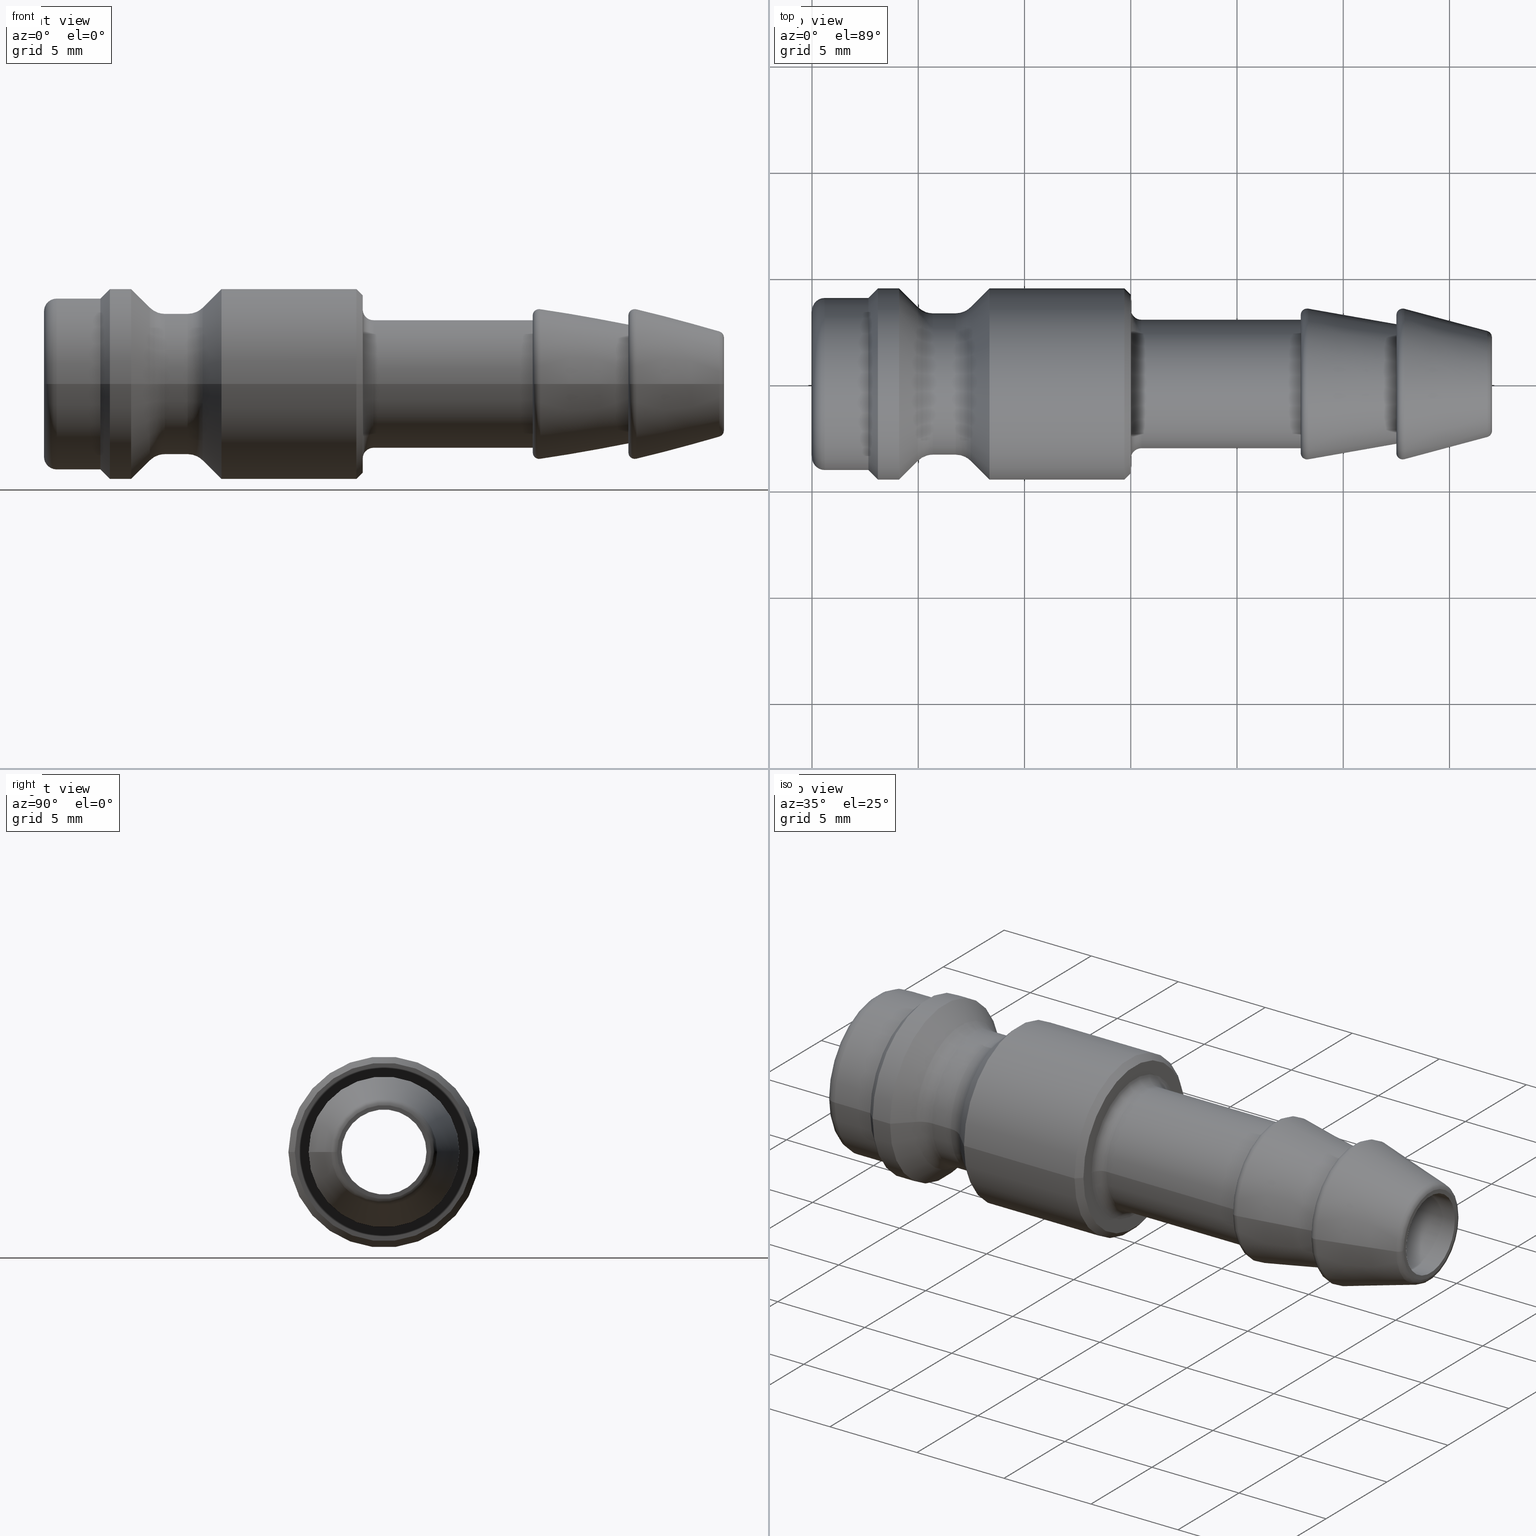
[diagram: canonical four-view strip — front | top / right | iso, engineering-drawing reading convention]
A machine part, canonical four-view strip (front | top / right | iso — engineering-drawing reading convention). The complete STEP part file that produces these views, byte-faithful:
ISO-10303-21;
HEADER;
/****************************************************************
 * Generated by software with PDElib inside                    *
 * PDElib Version v51a, created Wed 11/30/2011                  *
 * ITI Transcendata (http://www.transcendata.com/)              *
 ****************************************************************/
FILE_DESCRIPTION((''),'2;1');
FILE_NAME('J:\\3D Zeichnungen_step\\Serie 21\\21sftf06mxx.stp','2013-09-19T13:40:46',('IA176480'),(''),'Autodesk Inventor 2013','Autodesk Inventor 2013','');
FILE_SCHEMA(('AUTOMOTIVE_DESIGN { 1 0 10303 214 1 1 1 1 }'));
ENDSEC;
DATA;
#5=APPLICATION_CONTEXT('automotive design');
#6=APPLICATION_PROTOCOL_DEFINITION('International Standard','automotive_design',2001,#5);
#7=PRODUCT_CONTEXT('',#5,'mechanical');
#8=PRODUCT('D107819','D107819',$,(#7));
#9=PRODUCT_RELATED_PRODUCT_CATEGORY('part',$,(#8));
#10=PRODUCT_DEFINITION_FORMATION('',$,#8);
#11=PRODUCT_DEFINITION_CONTEXT('part definition',#5,'design');
#12=PRODUCT_DEFINITION('',$,#10,#11);
#18=(NAMED_UNIT(*)PLANE_ANGLE_UNIT()SI_UNIT($,.RADIAN.));
#19=DIMENSIONAL_EXPONENTS(0.0,0.0,0.0,0.0,0.0,0.0,0.0);
#20=PLANE_ANGLE_MEASURE_WITH_UNIT(PLANE_ANGLE_MEASURE(0.0174532925),#18);
#24=(CONVERSION_BASED_UNIT('DEGREE',#20)NAMED_UNIT(#19)PLANE_ANGLE_UNIT());
#28=(NAMED_UNIT(*)SI_UNIT($,.STERADIAN.)SOLID_ANGLE_UNIT());
#32=(LENGTH_UNIT()NAMED_UNIT(*)SI_UNIT(.MILLI.,.METRE.));
#34=UNCERTAINTY_MEASURE_WITH_UNIT(LENGTH_MEASURE(0.01),#32,'DISTANCE_ACCURACY_VALUE','');
#36=(GEOMETRIC_REPRESENTATION_CONTEXT(3)GLOBAL_UNCERTAINTY_ASSIGNED_CONTEXT((#34))GLOBAL_UNIT_ASSIGNED_CONTEXT((#24,#28,#32))REPRESENTATION_CONTEXT('None','None'));
#37=AXIS2_PLACEMENT_3D('',#38,#39,#40);
#38=CARTESIAN_POINT('',(0.0,0.0,0.0));
#39=DIRECTION('',(0.0,0.0,1.0));
#40=DIRECTION('',(1.0,0.0,0.0));
#41=SHAPE_REPRESENTATION('',(#37),#36);
#42=PRODUCT_DEFINITION_SHAPE('','',#12);
#43=SHAPE_DEFINITION_REPRESENTATION(#42,#41);
#49=(NAMED_UNIT(*)PLANE_ANGLE_UNIT()SI_UNIT($,.RADIAN.));
#50=DIMENSIONAL_EXPONENTS(0.0,0.0,0.0,0.0,0.0,0.0,0.0);
#51=PLANE_ANGLE_MEASURE_WITH_UNIT(PLANE_ANGLE_MEASURE(0.0174532925),#49);
#55=(CONVERSION_BASED_UNIT('DEGREE',#51)NAMED_UNIT(#50)PLANE_ANGLE_UNIT());
#59=(NAMED_UNIT(*)SI_UNIT($,.STERADIAN.)SOLID_ANGLE_UNIT());
#63=(LENGTH_UNIT()NAMED_UNIT(*)SI_UNIT(.MILLI.,.METRE.));
#65=UNCERTAINTY_MEASURE_WITH_UNIT(LENGTH_MEASURE(0.000001),#63,'DISTANCE_ACCURACY_VALUE','');
#67=(GEOMETRIC_REPRESENTATION_CONTEXT(3)GLOBAL_UNCERTAINTY_ASSIGNED_CONTEXT((#65))GLOBAL_UNIT_ASSIGNED_CONTEXT((#55,#59,#63))REPRESENTATION_CONTEXT('','3D'));
#68=CARTESIAN_POINT('',(25.426047226650041,0.0,0.0));
#69=DIRECTION('',(-1.0,0.0,0.0));
#70=DIRECTION('',(0.0,-1.0,0.0));
#71=AXIS2_PLACEMENT_3D('',#68,#69,#70);
#72=CONICAL_SURFACE('',#71,3.179748495246917,10.000000000000028);
#73=CARTESIAN_POINT('',(23.352094453300079,-3.545442325903664,0.0));
#74=VERTEX_POINT('',#73);
#75=CARTESIAN_POINT('',(23.352094453300079,0.0,0.0));
#76=DIRECTION('',(-1.0,0.0,0.0));
#77=DIRECTION('',(0.0,-1.0,0.0));
#78=AXIS2_PLACEMENT_3D('',#75,#76,#77);
#79=CIRCLE('',#78,3.545442325903664);
#80=EDGE_CURVE('',#74,#74,#79,.T.);
#81=ORIENTED_EDGE('',*,*,#80,.F.);
#82=EDGE_LOOP('',(#81));
#83=FACE_OUTER_BOUND('',#82,.T.);
#84=CARTESIAN_POINT('',(27.5,-2.81405466459017,0.0));
#85=VERTEX_POINT('',#84);
#86=CARTESIAN_POINT('',(27.5,0.0,0.0));
#87=DIRECTION('',(-1.0,0.0,0.0));
#88=DIRECTION('',(0.0,-1.0,0.0));
#89=AXIS2_PLACEMENT_3D('',#86,#87,#88);
#90=CIRCLE('',#89,2.81405466459017);
#91=EDGE_CURVE('',#85,#85,#90,.T.);
#92=ORIENTED_EDGE('',*,*,#91,.T.);
#93=EDGE_LOOP('',(#92));
#94=FACE_BOUND('',#93,.T.);
#95=ADVANCED_FACE('',(#83,#94),#72,.T.);
#96=CARTESIAN_POINT('',(23.300000000000001,0.0,0.0));
#97=DIRECTION('',(-1.0,0.0,0.0));
#98=DIRECTION('',(0.0,0.0,1.0));
#99=AXIS2_PLACEMENT_3D('',#96,#97,#98);
#100=TOROIDAL_SURFACE('',#99,3.25,0.299999999999997);
#101=CARTESIAN_POINT('',(23.000000000000004,-3.25,0.0));
#102=VERTEX_POINT('',#101);
#103=CARTESIAN_POINT('',(23.000000000000004,0.0,0.0));
#104=DIRECTION('',(-1.0,0.0,0.0));
#105=DIRECTION('',(0.0,-1.0,0.0));
#106=AXIS2_PLACEMENT_3D('',#103,#104,#105);
#107=CIRCLE('',#106,3.25);
#108=EDGE_CURVE('',#102,#102,#107,.T.);
#109=ORIENTED_EDGE('',*,*,#108,.F.);
#110=EDGE_LOOP('',(#109));
#111=FACE_OUTER_BOUND('',#110,.T.);
#112=ORIENTED_EDGE('',*,*,#80,.T.);
#113=EDGE_LOOP('',(#112));
#114=FACE_BOUND('',#113,.T.);
#115=ADVANCED_FACE('',(#111,#114),#100,.T.);
#116=CARTESIAN_POINT('',(23.000000000000004,-3.1375,0.0));
#117=DIRECTION('',(-1.0,0.0,0.0));
#118=DIRECTION('',(0.0,0.0,1.0));
#119=AXIS2_PLACEMENT_3D('',#116,#117,#118);
#120=PLANE('',#119);
#121=ORIENTED_EDGE('',*,*,#108,.T.);
#122=EDGE_LOOP('',(#121));
#123=FACE_OUTER_BOUND('',#122,.T.);
#124=CARTESIAN_POINT('',(23.000000000000004,-3.025,0.0));
#125=VERTEX_POINT('',#124);
#126=CARTESIAN_POINT('',(23.000000000000004,0.0,0.0));
#127=DIRECTION('',(-1.0,0.0,0.0));
#128=DIRECTION('',(0.0,-1.0,0.0));
#129=AXIS2_PLACEMENT_3D('',#126,#127,#128);
#130=CIRCLE('',#129,3.025);
#131=EDGE_CURVE('',#125,#125,#130,.T.);
#132=ORIENTED_EDGE('',*,*,#131,.F.);
#133=EDGE_LOOP('',(#132));
#134=FACE_BOUND('',#133,.T.);
#135=ADVANCED_FACE('',(#123,#134),#120,.T.);
#136=CARTESIAN_POINT('',(19.250000000000004,0.0,0.0));
#137=DIRECTION('',(-1.0,0.0,0.0));
#138=DIRECTION('',(0.0,-1.0,0.0));
#139=AXIS2_PLACEMENT_3D('',#136,#137,#138);
#140=CYLINDRICAL_SURFACE('',#139,3.025);
#141=CARTESIAN_POINT('',(15.5,-3.025,0.0));
#142=VERTEX_POINT('',#141);
#143=CARTESIAN_POINT('',(15.5,0.0,0.0));
#144=DIRECTION('',(-1.0,0.0,0.0));
#145=DIRECTION('',(0.0,-1.0,0.0));
#146=AXIS2_PLACEMENT_3D('',#143,#144,#145);
#147=CIRCLE('',#146,3.025);
#148=EDGE_CURVE('',#142,#142,#147,.T.);
#149=ORIENTED_EDGE('',*,*,#148,.F.);
#150=EDGE_LOOP('',(#149));
#151=FACE_OUTER_BOUND('',#150,.T.);
#152=ORIENTED_EDGE('',*,*,#131,.T.);
#153=EDGE_LOOP('',(#152));
#154=FACE_BOUND('',#153,.T.);
#155=ADVANCED_FACE('',(#151,#154),#140,.T.);
#156=CARTESIAN_POINT('',(15.500000000000004,0.0,0.0));
#157=DIRECTION('',(-1.0,0.0,0.0));
#158=DIRECTION('',(0.0,0.0,1.0));
#159=AXIS2_PLACEMENT_3D('',#156,#157,#158);
#160=TOROIDAL_SURFACE('',#159,3.525000000000002,0.500000000000002);
#161=CARTESIAN_POINT('',(15.0,-3.525,0.0));
#162=VERTEX_POINT('',#161);
#163=CARTESIAN_POINT('',(15.0,0.0,0.0));
#164=DIRECTION('',(-1.0,0.0,0.0));
#165=DIRECTION('',(0.0,-1.0,0.0));
#166=AXIS2_PLACEMENT_3D('',#163,#164,#165);
#167=CIRCLE('',#166,3.525);
#168=EDGE_CURVE('',#162,#162,#167,.T.);
#169=ORIENTED_EDGE('',*,*,#168,.F.);
#170=EDGE_LOOP('',(#169));
#171=FACE_OUTER_BOUND('',#170,.T.);
#172=ORIENTED_EDGE('',*,*,#148,.T.);
#173=EDGE_LOOP('',(#172));
#174=FACE_BOUND('',#173,.T.);
#175=ADVANCED_FACE('',(#171,#174),#160,.F.);
#176=CARTESIAN_POINT('',(15.0,-3.8625,0.0));
#177=DIRECTION('',(1.0,0.0,0.0));
#178=DIRECTION('',(0.0,0.0,-1.0));
#179=AXIS2_PLACEMENT_3D('',#176,#177,#178);
#180=PLANE('',#179);
#181=CARTESIAN_POINT('',(15.0,-4.199999999999999,0.0));
#182=VERTEX_POINT('',#181);
#183=CARTESIAN_POINT('',(15.0,0.0,0.0));
#184=DIRECTION('',(-1.0,0.0,0.0));
#185=DIRECTION('',(0.0,-1.0,0.0));
#186=AXIS2_PLACEMENT_3D('',#183,#184,#185);
#187=CIRCLE('',#186,4.199999999999999);
#188=EDGE_CURVE('',#182,#182,#187,.T.);
#189=ORIENTED_EDGE('',*,*,#188,.F.);
#190=EDGE_LOOP('',(#189));
#191=FACE_OUTER_BOUND('',#190,.T.);
#192=ORIENTED_EDGE('',*,*,#168,.T.);
#193=EDGE_LOOP('',(#192));
#194=FACE_BOUND('',#193,.T.);
#195=ADVANCED_FACE('',(#191,#194),#180,.T.);
#196=CARTESIAN_POINT('',(14.850000000000001,0.0,0.0));
#197=DIRECTION('',(-1.0,0.0,0.0));
#198=DIRECTION('',(0.0,-1.0,0.0));
#199=AXIS2_PLACEMENT_3D('',#196,#197,#198);
#200=CONICAL_SURFACE('',#199,4.35,45.000000000000206);
#201=CARTESIAN_POINT('',(14.700000000000003,-4.5,0.0));
#202=VERTEX_POINT('',#201);
#203=CARTESIAN_POINT('',(14.700000000000003,0.0,0.0));
#204=DIRECTION('',(-1.0,0.0,0.0));
#205=DIRECTION('',(0.0,-1.0,0.0));
#206=AXIS2_PLACEMENT_3D('',#203,#204,#205);
#207=CIRCLE('',#206,4.5);
#208=EDGE_CURVE('',#202,#202,#207,.T.);
#209=ORIENTED_EDGE('',*,*,#208,.F.);
#210=EDGE_LOOP('',(#209));
#211=FACE_OUTER_BOUND('',#210,.T.);
#212=ORIENTED_EDGE('',*,*,#188,.T.);
#213=EDGE_LOOP('',(#212));
#214=FACE_BOUND('',#213,.T.);
#215=ADVANCED_FACE('',(#211,#214),#200,.T.);
#216=CARTESIAN_POINT('',(11.525000000000002,0.0,0.0));
#217=DIRECTION('',(-1.0,0.0,0.0));
#218=DIRECTION('',(0.0,-1.0,0.0));
#219=AXIS2_PLACEMENT_3D('',#216,#217,#218);
#220=CYLINDRICAL_SURFACE('',#219,4.5);
#221=CARTESIAN_POINT('',(8.350000000000001,-4.500000000000001,0.0));
#222=VERTEX_POINT('',#221);
#223=CARTESIAN_POINT('',(8.350000000000001,0.0,0.0));
#224=DIRECTION('',(-1.0,0.0,0.0));
#225=DIRECTION('',(0.0,-1.0,0.0));
#226=AXIS2_PLACEMENT_3D('',#223,#224,#225);
#227=CIRCLE('',#226,4.500000000000001);
#228=EDGE_CURVE('',#222,#222,#227,.T.);
#229=ORIENTED_EDGE('',*,*,#228,.F.);
#230=EDGE_LOOP('',(#229));
#231=FACE_OUTER_BOUND('',#230,.T.);
#232=ORIENTED_EDGE('',*,*,#208,.T.);
#233=EDGE_LOOP('',(#232));
#234=FACE_BOUND('',#233,.T.);
#235=ADVANCED_FACE('',(#231,#234),#220,.T.);
#236=CARTESIAN_POINT('',(7.908946609406726,0.0,0.0));
#237=DIRECTION('',(1.0,0.0,0.0));
#238=DIRECTION('',(0.0,-1.0,0.0));
#239=AXIS2_PLACEMENT_3D('',#236,#237,#238);
#240=CONICAL_SURFACE('',#239,4.058946609406727,44.999999999999879);
#241=CARTESIAN_POINT('',(7.467893218813448,-3.617893218813451,0.0));
#242=VERTEX_POINT('',#241);
#243=CARTESIAN_POINT('',(7.467893218813448,0.0,0.0));
#244=DIRECTION('',(-1.0,0.0,0.0));
#245=DIRECTION('',(0.0,-1.0,0.0));
#246=AXIS2_PLACEMENT_3D('',#243,#244,#245);
#247=CIRCLE('',#246,3.617893218813451);
#248=EDGE_CURVE('',#242,#242,#247,.T.);
#249=ORIENTED_EDGE('',*,*,#248,.F.);
#250=EDGE_LOOP('',(#249));
#251=FACE_OUTER_BOUND('',#250,.T.);
#252=ORIENTED_EDGE('',*,*,#228,.T.);
#253=EDGE_LOOP('',(#252));
#254=FACE_BOUND('',#253,.T.);
#255=ADVANCED_FACE('',(#251,#254),#240,.T.);
#256=CARTESIAN_POINT('',(6.760786437626902,0.0,0.0));
#257=DIRECTION('',(-1.0,0.0,0.0));
#258=DIRECTION('',(0.0,0.0,1.0));
#259=AXIS2_PLACEMENT_3D('',#256,#257,#258);
#260=TOROIDAL_SURFACE('',#259,4.325000000000003,1.000000000000002);
#261=CARTESIAN_POINT('',(6.760786437626901,-3.325000000000001,0.0));
#262=VERTEX_POINT('',#261);
#263=CARTESIAN_POINT('',(6.760786437626902,0.0,0.0));
#264=DIRECTION('',(-1.0,0.0,0.0));
#265=DIRECTION('',(0.0,-1.0,0.0));
#266=AXIS2_PLACEMENT_3D('',#263,#264,#265);
#267=CIRCLE('',#266,3.325000000000001);
#268=EDGE_CURVE('',#262,#262,#267,.T.);
#269=ORIENTED_EDGE('',*,*,#268,.F.);
#270=EDGE_LOOP('',(#269));
#271=FACE_OUTER_BOUND('',#270,.T.);
#272=ORIENTED_EDGE('',*,*,#248,.T.);
#273=EDGE_LOOP('',(#272));
#274=FACE_BOUND('',#273,.T.);
#275=ADVANCED_FACE('',(#271,#274),#260,.F.);
#276=CARTESIAN_POINT('',(6.224999999999996,0.0,0.0));
#277=DIRECTION('',(-1.0,0.0,0.0));
#278=DIRECTION('',(0.0,-1.0,0.0));
#279=AXIS2_PLACEMENT_3D('',#276,#277,#278);
#280=CYLINDRICAL_SURFACE('',#279,3.325000000000001);
#281=CARTESIAN_POINT('',(5.689213562373094,-3.325000000000001,0.0));
#282=VERTEX_POINT('',#281);
#283=CARTESIAN_POINT('',(5.689213562373094,0.0,0.0));
#284=DIRECTION('',(-1.0,0.0,0.0));
#285=DIRECTION('',(0.0,-1.0,0.0));
#286=AXIS2_PLACEMENT_3D('',#283,#284,#285);
#287=CIRCLE('',#286,3.325000000000001);
#288=EDGE_CURVE('',#282,#282,#287,.T.);
#289=ORIENTED_EDGE('',*,*,#288,.F.);
#290=EDGE_LOOP('',(#289));
#291=FACE_OUTER_BOUND('',#290,.T.);
#292=ORIENTED_EDGE('',*,*,#268,.T.);
#293=EDGE_LOOP('',(#292));
#294=FACE_BOUND('',#293,.T.);
#295=ADVANCED_FACE('',(#291,#294),#280,.T.);
#296=CARTESIAN_POINT('',(5.689213562373091,0.0,0.0));
#297=DIRECTION('',(-1.0,0.0,0.0));
#298=DIRECTION('',(0.0,0.0,1.0));
#299=AXIS2_PLACEMENT_3D('',#296,#297,#298);
#300=TOROIDAL_SURFACE('',#299,4.324999999999996,0.999999999999995);
#301=CARTESIAN_POINT('',(4.982106781186545,-3.617893218813455,0.0));
#302=VERTEX_POINT('',#301);
#303=CARTESIAN_POINT('',(4.982106781186544,0.0,0.0));
#304=DIRECTION('',(-1.0,0.0,0.0));
#305=DIRECTION('',(0.0,-1.0,0.0));
#306=AXIS2_PLACEMENT_3D('',#303,#304,#305);
#307=CIRCLE('',#306,3.617893218813455);
#308=EDGE_CURVE('',#302,#302,#307,.T.);
#309=ORIENTED_EDGE('',*,*,#308,.F.);
#310=EDGE_LOOP('',(#309));
#311=FACE_OUTER_BOUND('',#310,.T.);
#312=ORIENTED_EDGE('',*,*,#288,.T.);
#313=EDGE_LOOP('',(#312));
#314=FACE_BOUND('',#313,.T.);
#315=ADVANCED_FACE('',(#311,#314),#300,.F.);
#316=CARTESIAN_POINT('',(4.541053390593275,0.0,0.0));
#317=DIRECTION('',(-1.0,0.0,0.0));
#318=DIRECTION('',(0.0,-1.0,0.0));
#319=AXIS2_PLACEMENT_3D('',#316,#317,#318);
#320=CONICAL_SURFACE('',#319,4.058946609406728,45.000000000000057);
#321=CARTESIAN_POINT('',(4.100000000000001,-4.5,0.0));
#322=VERTEX_POINT('',#321);
#323=CARTESIAN_POINT('',(4.100000000000001,0.0,0.0));
#324=DIRECTION('',(-1.0,0.0,0.0));
#325=DIRECTION('',(0.0,-1.0,0.0));
#326=AXIS2_PLACEMENT_3D('',#323,#324,#325);
#327=CIRCLE('',#326,4.5);
#328=EDGE_CURVE('',#322,#322,#327,.T.);
#329=ORIENTED_EDGE('',*,*,#328,.F.);
#330=EDGE_LOOP('',(#329));
#331=FACE_OUTER_BOUND('',#330,.T.);
#332=ORIENTED_EDGE('',*,*,#308,.T.);
#333=EDGE_LOOP('',(#332));
#334=FACE_BOUND('',#333,.T.);
#335=ADVANCED_FACE('',(#331,#334),#320,.T.);
#336=CARTESIAN_POINT('',(3.600000000000003,0.0,0.0));
#337=DIRECTION('',(-1.0,0.0,0.0));
#338=DIRECTION('',(0.0,-1.0,0.0));
#339=AXIS2_PLACEMENT_3D('',#336,#337,#338);
#340=CYLINDRICAL_SURFACE('',#339,4.5);
#341=CARTESIAN_POINT('',(3.100000000000003,-4.5,0.0));
#342=VERTEX_POINT('',#341);
#343=CARTESIAN_POINT('',(3.100000000000005,0.0,0.0));
#344=DIRECTION('',(-1.0,0.0,0.0));
#345=DIRECTION('',(0.0,-1.0,0.0));
#346=AXIS2_PLACEMENT_3D('',#343,#344,#345);
#347=CIRCLE('',#346,4.5);
#348=EDGE_CURVE('',#342,#342,#347,.T.);
#349=ORIENTED_EDGE('',*,*,#348,.F.);
#350=EDGE_LOOP('',(#349));
#351=FACE_OUTER_BOUND('',#350,.T.);
#352=ORIENTED_EDGE('',*,*,#328,.T.);
#353=EDGE_LOOP('',(#352));
#354=FACE_BOUND('',#353,.T.);
#355=ADVANCED_FACE('',(#351,#354),#340,.T.);
#356=CARTESIAN_POINT('',(2.875000000000001,0.0,0.0));
#357=DIRECTION('',(1.0,0.0,0.0));
#358=DIRECTION('',(0.0,-1.0,0.0));
#359=AXIS2_PLACEMENT_3D('',#356,#357,#358);
#360=CONICAL_SURFACE('',#359,4.275,44.999999999999901);
#361=CARTESIAN_POINT('',(2.650000000000001,-4.050000000000001,0.0));
#362=VERTEX_POINT('',#361);
#363=CARTESIAN_POINT('',(2.650000000000001,0.0,0.0));
#364=DIRECTION('',(-1.0,0.0,0.0));
#365=DIRECTION('',(0.0,-1.0,0.0));
#366=AXIS2_PLACEMENT_3D('',#363,#364,#365);
#367=CIRCLE('',#366,4.050000000000001);
#368=EDGE_CURVE('',#362,#362,#367,.T.);
#369=ORIENTED_EDGE('',*,*,#368,.F.);
#370=EDGE_LOOP('',(#369));
#371=FACE_OUTER_BOUND('',#370,.T.);
#372=ORIENTED_EDGE('',*,*,#348,.T.);
#373=EDGE_LOOP('',(#372));
#374=FACE_BOUND('',#373,.T.);
#375=ADVANCED_FACE('',(#371,#374),#360,.T.);
#376=CARTESIAN_POINT('',(1.625000000000001,0.0,0.0));
#377=DIRECTION('',(-1.0,0.0,0.0));
#378=DIRECTION('',(0.0,-1.0,0.0));
#379=AXIS2_PLACEMENT_3D('',#376,#377,#378);
#380=CYLINDRICAL_SURFACE('',#379,4.050000000000001);
#381=CARTESIAN_POINT('',(0.600000000000001,-4.050000000000001,0.0));
#382=VERTEX_POINT('',#381);
#383=CARTESIAN_POINT('',(0.600000000000001,0.0,0.0));
#384=DIRECTION('',(-1.0,0.0,0.0));
#385=DIRECTION('',(0.0,-1.0,0.0));
#386=AXIS2_PLACEMENT_3D('',#383,#384,#385);
#387=CIRCLE('',#386,4.050000000000001);
#388=EDGE_CURVE('',#382,#382,#387,.T.);
#389=ORIENTED_EDGE('',*,*,#388,.F.);
#390=EDGE_LOOP('',(#389));
#391=FACE_OUTER_BOUND('',#390,.T.);
#392=ORIENTED_EDGE('',*,*,#368,.T.);
#393=EDGE_LOOP('',(#392));
#394=FACE_BOUND('',#393,.T.);
#395=ADVANCED_FACE('',(#391,#394),#380,.T.);
#396=CARTESIAN_POINT('',(0.600000000000002,0.0,0.0));
#397=DIRECTION('',(-1.0,0.0,0.0));
#398=DIRECTION('',(0.0,0.0,1.0));
#399=AXIS2_PLACEMENT_3D('',#396,#397,#398);
#400=TOROIDAL_SURFACE('',#399,3.45,0.600000000000001);
#401=CARTESIAN_POINT('',(1.249001E-015,-3.45,0.0));
#402=VERTEX_POINT('',#401);
#403=CARTESIAN_POINT('',(0.0,0.0,0.0));
#404=DIRECTION('',(-1.0,0.0,0.0));
#405=DIRECTION('',(0.0,-1.0,0.0));
#406=AXIS2_PLACEMENT_3D('',#403,#404,#405);
#407=CIRCLE('',#406,3.45);
#408=EDGE_CURVE('',#402,#402,#407,.T.);
#409=ORIENTED_EDGE('',*,*,#408,.F.);
#410=EDGE_LOOP('',(#409));
#411=FACE_OUTER_BOUND('',#410,.T.);
#412=ORIENTED_EDGE('',*,*,#388,.T.);
#413=EDGE_LOOP('',(#412));
#414=FACE_BOUND('',#413,.T.);
#415=ADVANCED_FACE('',(#411,#414),#400,.T.);
#416=CARTESIAN_POINT('',(1.734723E-015,-2.725000000000002,0.0));
#417=DIRECTION('',(-1.0,0.0,0.0));
#418=DIRECTION('',(0.0,0.0,1.0));
#419=AXIS2_PLACEMENT_3D('',#416,#417,#418);
#420=PLANE('',#419);
#421=ORIENTED_EDGE('',*,*,#408,.T.);
#422=EDGE_LOOP('',(#421));
#423=FACE_OUTER_BOUND('',#422,.T.);
#424=CARTESIAN_POINT('',(2.220446E-015,-2.000000000000004,0.0));
#425=VERTEX_POINT('',#424);
#426=CARTESIAN_POINT('',(4.440892E-015,0.0,0.0));
#427=DIRECTION('',(-1.0,0.0,0.0));
#428=DIRECTION('',(0.0,-1.0,0.0));
#429=AXIS2_PLACEMENT_3D('',#426,#427,#428);
#430=CIRCLE('',#429,2.000000000000004);
#431=EDGE_CURVE('',#425,#425,#430,.T.);
#432=ORIENTED_EDGE('',*,*,#431,.F.);
#433=EDGE_LOOP('',(#432));
#434=FACE_BOUND('',#433,.T.);
#435=ADVANCED_FACE('',(#423,#434),#420,.T.);
#436=CARTESIAN_POINT('',(16.000000000000004,0.0,0.0));
#437=DIRECTION('',(-1.0,0.0,0.0));
#438=DIRECTION('',(0.0,-1.0,0.0));
#439=AXIS2_PLACEMENT_3D('',#436,#437,#438);
#440=CYLINDRICAL_SURFACE('',#439,2.0);
#441=CARTESIAN_POINT('',(32.0,-1.999999999999995,0.0));
#442=VERTEX_POINT('',#441);
#443=CARTESIAN_POINT('',(32.0,0.0,0.0));
#444=DIRECTION('',(-1.0,0.0,0.0));
#445=DIRECTION('',(0.0,-1.0,0.0));
#446=AXIS2_PLACEMENT_3D('',#443,#444,#445);
#447=CIRCLE('',#446,1.999999999999995);
#448=EDGE_CURVE('',#442,#442,#447,.T.);
#449=ORIENTED_EDGE('',*,*,#448,.F.);
#450=EDGE_LOOP('',(#449));
#451=FACE_OUTER_BOUND('',#450,.T.);
#452=ORIENTED_EDGE('',*,*,#431,.T.);
#453=EDGE_LOOP('',(#452));
#454=FACE_BOUND('',#453,.T.);
#455=ADVANCED_FACE('',(#451,#454),#440,.F.);
#456=CARTESIAN_POINT('',(32.0,-2.102499074759306,0.0));
#457=DIRECTION('',(1.0,0.0,0.0));
#458=DIRECTION('',(0.0,0.0,-1.0));
#459=AXIS2_PLACEMENT_3D('',#456,#457,#458);
#460=PLANE('',#459);
#461=CARTESIAN_POINT('',(32.0,-2.204998149518617,0.0));
#462=VERTEX_POINT('',#461);
#463=CARTESIAN_POINT('',(32.0,0.0,0.0));
#464=DIRECTION('',(-1.0,0.0,0.0));
#465=DIRECTION('',(0.0,-1.0,0.0));
#466=AXIS2_PLACEMENT_3D('',#463,#464,#465);
#467=CIRCLE('',#466,2.204998149518617);
#468=EDGE_CURVE('',#462,#462,#467,.T.);
#469=ORIENTED_EDGE('',*,*,#468,.F.);
#470=EDGE_LOOP('',(#469));
#471=FACE_OUTER_BOUND('',#470,.T.);
#472=ORIENTED_EDGE('',*,*,#448,.T.);
#473=EDGE_LOOP('',(#472));
#474=FACE_BOUND('',#473,.T.);
#475=ADVANCED_FACE('',(#471,#474),#460,.T.);
#476=CARTESIAN_POINT('',(31.700000000000003,0.0,0.0));
#477=DIRECTION('',(-1.0,0.0,0.0));
#478=DIRECTION('',(0.0,0.0,1.0));
#479=AXIS2_PLACEMENT_3D('',#476,#477,#478);
#480=TOROIDAL_SURFACE('',#479,2.204998149518617,0.299999999999994);
#481=CARTESIAN_POINT('',(31.777645713530763,-2.494775897405338,0.0));
#482=VERTEX_POINT('',#481);
#483=CARTESIAN_POINT('',(31.777645713530763,0.0,0.0));
#484=DIRECTION('',(-1.0,0.0,0.0));
#485=DIRECTION('',(0.0,-1.0,0.0));
#486=AXIS2_PLACEMENT_3D('',#483,#484,#485);
#487=CIRCLE('',#486,2.494775897405338);
#488=EDGE_CURVE('',#482,#482,#487,.T.);
#489=ORIENTED_EDGE('',*,*,#488,.F.);
#490=EDGE_LOOP('',(#489));
#491=FACE_OUTER_BOUND('',#490,.T.);
#492=ORIENTED_EDGE('',*,*,#468,.T.);
#493=EDGE_LOOP('',(#492));
#494=FACE_BOUND('',#493,.T.);
#495=ADVANCED_FACE('',(#491,#494),#480,.T.);
#496=CARTESIAN_POINT('',(29.827645713530757,0.0,0.0));
#497=DIRECTION('',(-1.0,0.0,0.0));
#498=DIRECTION('',(0.0,-1.0,0.0));
#499=AXIS2_PLACEMENT_3D('',#496,#497,#498);
#500=CONICAL_SURFACE('',#499,3.017276822646029,14.999999999999993);
#501=CARTESIAN_POINT('',(27.877645713530747,-3.53977774788672,0.0));
#502=VERTEX_POINT('',#501);
#503=CARTESIAN_POINT('',(27.877645713530747,0.0,0.0));
#504=DIRECTION('',(-1.0,0.0,0.0));
#505=DIRECTION('',(0.0,-1.0,0.0));
#506=AXIS2_PLACEMENT_3D('',#503,#504,#505);
#507=CIRCLE('',#506,3.53977774788672);
#508=EDGE_CURVE('',#502,#502,#507,.T.);
#509=ORIENTED_EDGE('',*,*,#508,.F.);
#510=EDGE_LOOP('',(#509));
#511=FACE_OUTER_BOUND('',#510,.T.);
#512=ORIENTED_EDGE('',*,*,#488,.T.);
#513=EDGE_LOOP('',(#512));
#514=FACE_BOUND('',#513,.T.);
#515=ADVANCED_FACE('',(#511,#514),#500,.T.);
#516=CARTESIAN_POINT('',(27.799999999999994,0.0,0.0));
#517=DIRECTION('',(-1.0,0.0,0.0));
#518=DIRECTION('',(0.0,0.0,1.0));
#519=AXIS2_PLACEMENT_3D('',#516,#517,#518);
#520=TOROIDAL_SURFACE('',#519,3.25,0.299999999999997);
#521=CARTESIAN_POINT('',(27.5,-3.25,0.0));
#522=VERTEX_POINT('',#521);
#523=CARTESIAN_POINT('',(27.5,0.0,0.0));
#524=DIRECTION('',(-1.0,0.0,0.0));
#525=DIRECTION('',(0.0,-1.0,0.0));
#526=AXIS2_PLACEMENT_3D('',#523,#524,#525);
#527=CIRCLE('',#526,3.25);
#528=EDGE_CURVE('',#522,#522,#527,.T.);
#529=ORIENTED_EDGE('',*,*,#528,.F.);
#530=EDGE_LOOP('',(#529));
#531=FACE_OUTER_BOUND('',#530,.T.);
#532=ORIENTED_EDGE('',*,*,#508,.T.);
#533=EDGE_LOOP('',(#532));
#534=FACE_BOUND('',#533,.T.);
#535=ADVANCED_FACE('',(#531,#534),#520,.T.);
#536=CARTESIAN_POINT('',(27.5,-3.032027332295085,0.0));
#537=DIRECTION('',(-1.0,0.0,0.0));
#538=DIRECTION('',(0.0,0.0,1.0));
#539=AXIS2_PLACEMENT_3D('',#536,#537,#538);
#540=PLANE('',#539);
#541=ORIENTED_EDGE('',*,*,#528,.T.);
#542=EDGE_LOOP('',(#541));
#543=FACE_OUTER_BOUND('',#542,.T.);
#544=ORIENTED_EDGE('',*,*,#91,.F.);
#545=EDGE_LOOP('',(#544));
#546=FACE_BOUND('',#545,.T.);
#547=ADVANCED_FACE('',(#543,#546),#540,.T.);
#548=CLOSED_SHELL('',(#95,#115,#135,#155,#175,#195,#215,#235,#255,#275,#295,#315,#335,#355,#375,#395,#415,#435,#455,#475,#495,#515,#535,#547));
#549=MANIFOLD_SOLID_BREP('Solid1',#548);
#550=COLOUR_RGB('Metal-Brass',0.780391991138458,0.568626999855042,0.113724999129772);
#551=FILL_AREA_STYLE_COLOUR('Metal-Brass',#550);
#552=FILL_AREA_STYLE('Metal-Brass',(#551));
#553=SURFACE_STYLE_FILL_AREA(#552);
#554=SURFACE_SIDE_STYLE('Metal-Brass',(#553));
#555=SURFACE_STYLE_USAGE(.BOTH.,#554);
#556=PRESENTATION_STYLE_ASSIGNMENT((#555));
#557=STYLED_ITEM('',(#556),#549);
#558=MECHANICAL_DESIGN_GEOMETRIC_PRESENTATION_REPRESENTATION('',(#557),#36);
#559=ADVANCED_BREP_SHAPE_REPRESENTATION('ABSR',(#549),#36);
#560=SHAPE_REPRESENTATION_RELATIONSHIP('SRR','None',#559,#41);
ENDSEC;
END-ISO-10303-21;
